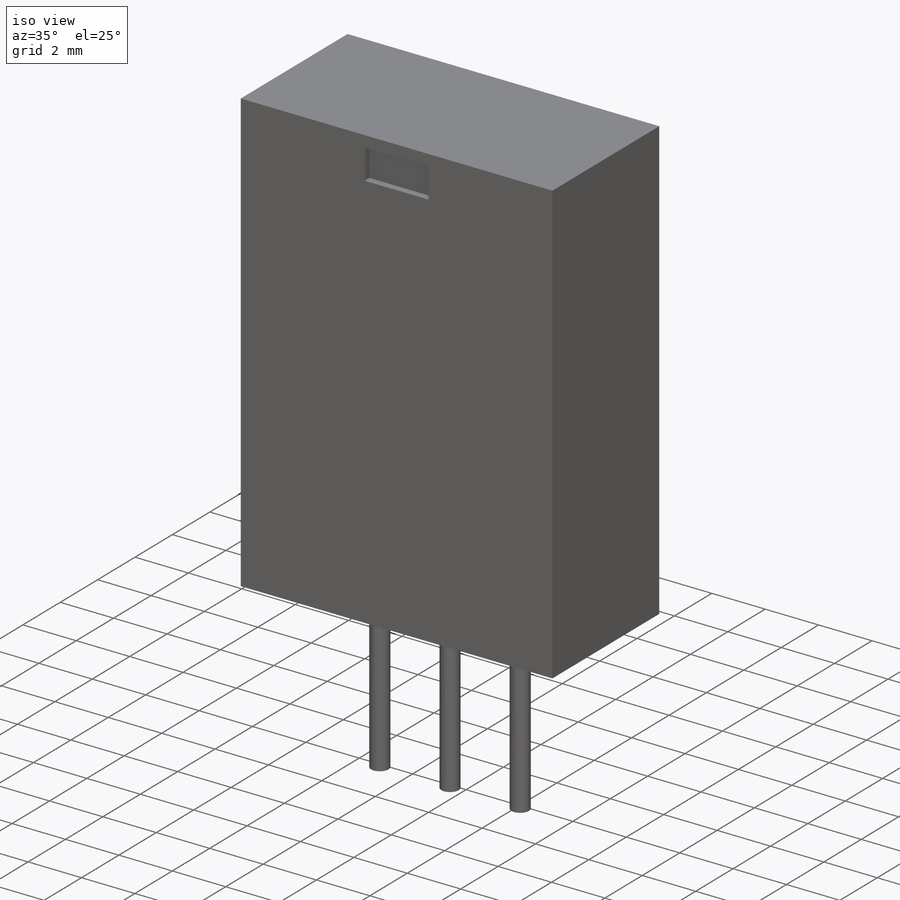
[diagram: iso view]
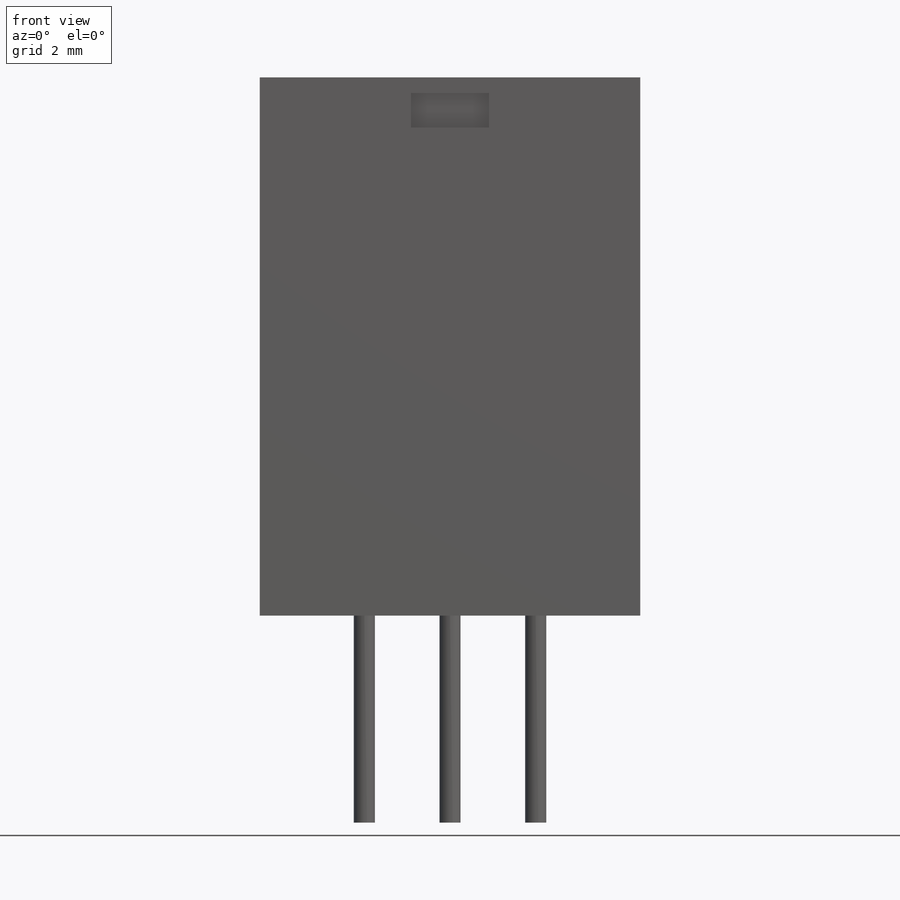
[diagram: front view]
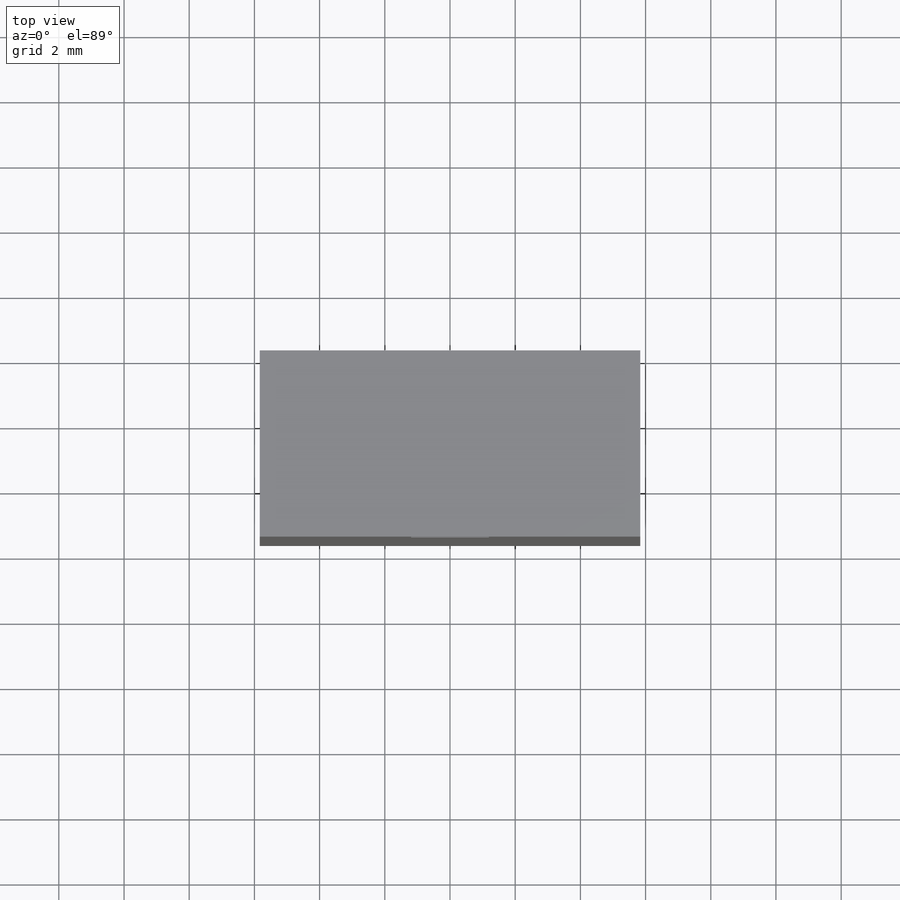
[diagram: top view]
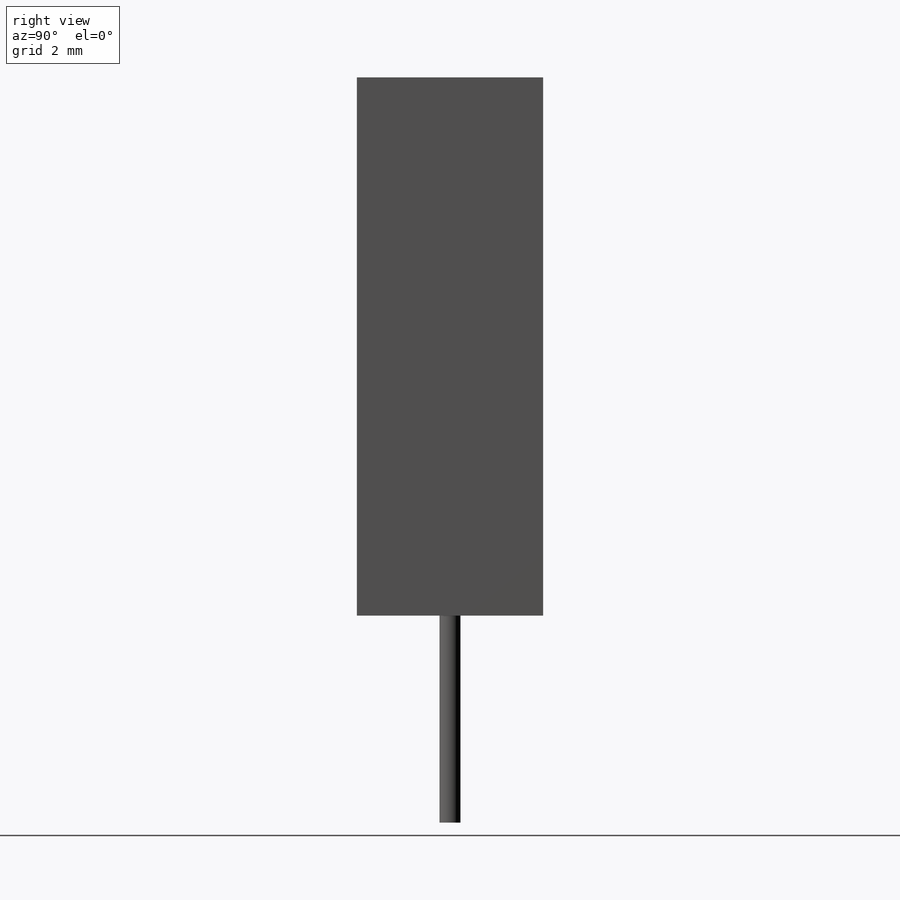
[diagram: right view]
SOLIDWORKS PART (.sldprt)
format: sldprt  version: not decoded by parser v0  size: 140,288 bytes
history: native  units: mm
features: sketch x3, extrude x2, material x1, cut_extrude x1 (+13 scaffold rows collapsed)
feature tree (20):
  scaffold x13  (default folders/planes/origin — collapsed)
  material  "Material <not specified>"
  sketch  "Sketch1"  dims[D1=11.6713mm D2=16.51mm]
  extrude  "Boss-Extrude1"  Depth=5.715mm
  sketch  "Sketch2"
  cut_extrude  "Cut-Extrude1"  Depth=0.254mm
  sketch  "Sketch3"  dims[c1.D1=0.6477mm c1.D4=0.6477mm c1.D2=11.6713mm c1.D3=~2.917825mm c2.D4=2.6289mm c2.D3=2.6289mm]
  extrude  "Boss-Extrude2"  Depth=6.35mm
decode coverage: 5 of 6 modeling features carry decoded parameters
note: ~ marks probable driven/reference dimensions
note: suppression state not decoded; provenance and decode notes live in map.json
